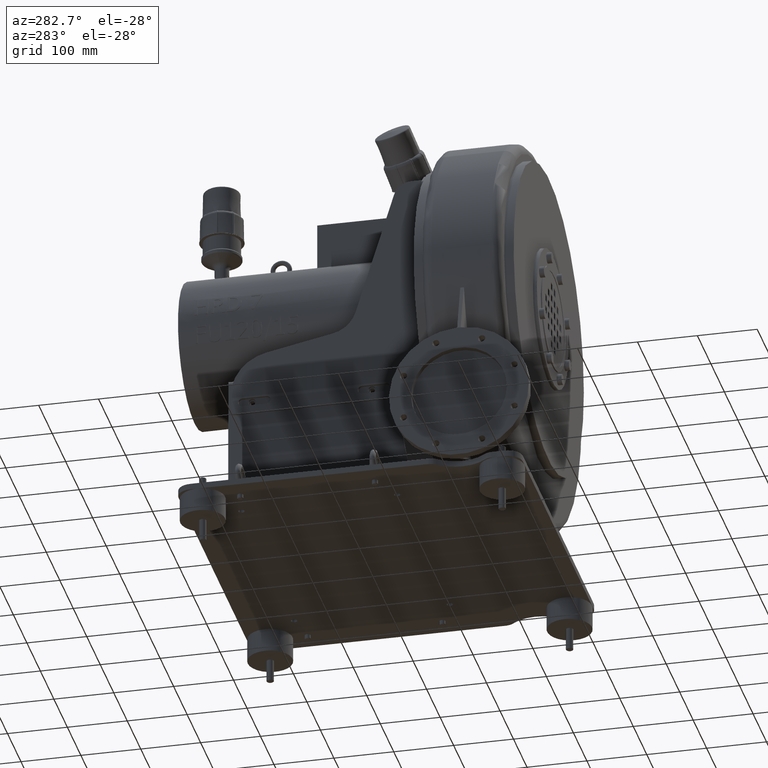
[diagram: clean part render]
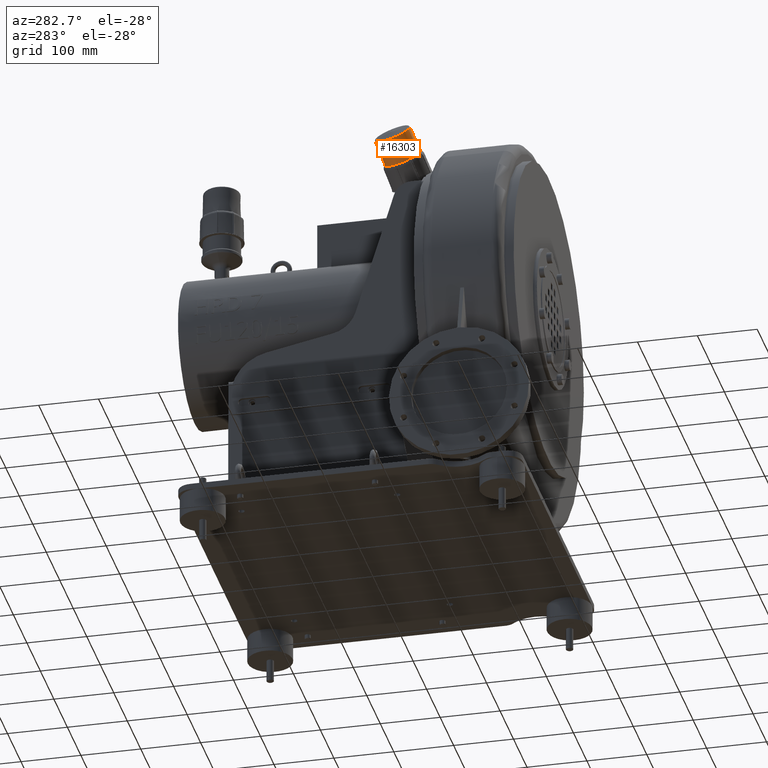
[diagram: same view with one face highlighted and labeled with its STEP entity id]
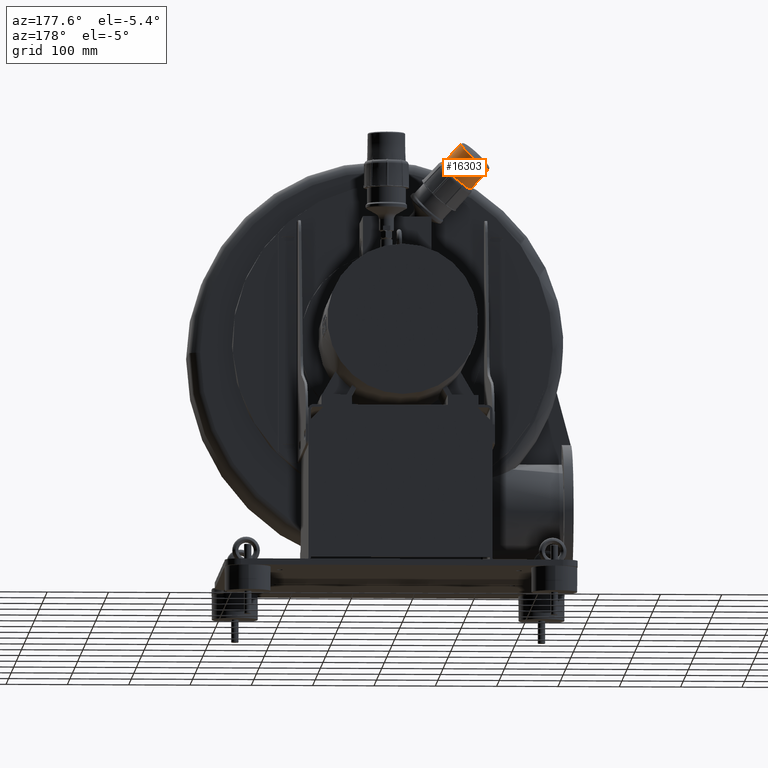
[diagram: same view with one face highlighted and labeled with its STEP entity id]
A machine part, auxiliary view. The second image highlights one B-rep face of the part: STEP entity #16303.
A second angle (auxiliary view) of the same face is appended — the face is thin or edge-on in the first view.
In plain terms, the highlighted conical surface has half-angle 1 deg.
Its self-contained STEP definition (entity closure, byte-faithful):
#8280=CARTESIAN_POINT('',(-125.63222589271791,-69.208766513814041,655.3577129855363));
#8281=VERTEX_POINT('',#8280);
#8291=CARTESIAN_POINT('',(-125.6505280962525,-69.080085635130587,655.21795734609225));
#8292=VERTEX_POINT('',#8291);
#8293=CARTESIAN_POINT('',(-125.63222589271791,-69.208766513814041,655.3577129855363));
#8294=CARTESIAN_POINT('',(-125.63260008677784,-69.1898502410655,655.33326689924809));
#8295=CARTESIAN_POINT('',(-125.63317027289006,-69.170946254988067,655.30924534175165));
#8296=CARTESIAN_POINT('',(-125.63428945843984,-69.153578199285832,655.2881990153885));
#8297=CARTESIAN_POINT('',(-125.634849051225,-69.144894171275894,655.27767585201445));
#8298=CARTESIAN_POINT('',(-125.63554589388167,-69.136594125837433,655.26789649641171));
#8299=CARTESIAN_POINT('',(-125.63642584849632,-69.128870009769315,655.25917866440807));
#8300=CARTESIAN_POINT('',(-125.63730580302573,-69.121145894449143,655.25046083324867));
#8301=CARTESIAN_POINT('',(-125.63836887281326,-69.113997704584321,655.24280452583992));
#8302=CARTESIAN_POINT('',(-125.63966091697881,-69.107617388733615,655.23652745558832));
#8303=CARTESIAN_POINT('',(-125.64030693922564,-69.10442722999818,655.23338891966557));
#8304=CARTESIAN_POINT('',(-125.64101020514235,-69.1014290398453,655.23059519325682));
#8305=CARTESIAN_POINT('',(-125.64177645260152,-69.098646812304338,655.22818598610093));
#8306=CARTESIAN_POINT('',(-125.64292582359572,-69.09447347169943,655.22457217597878));
#8307=CARTESIAN_POINT('',(-125.64421690314288,-69.090786050863187,655.22182353939002));
#8308=CARTESIAN_POINT('',(-125.64566905491122,-69.08766553008148,655.22007409461139));
#8309=CARTESIAN_POINT('',(-125.64639513079543,-69.086105269690634,655.21919937222196));
#8310=CARTESIAN_POINT('',(-125.64716147471962,-69.084686734090155,655.21857444746911));
#8311=CARTESIAN_POINT('',(-125.6479705076994,-69.083420044486431,655.21821607179675));
#8312=CARTESIAN_POINT('',(-125.64877954067917,-69.082153354882706,655.21785769612416));
#8313=CARTESIAN_POINT('',(-125.6496312628546,-69.081038511438507,655.2177658699685));
#8314=CARTESIAN_POINT('',(-125.6505280962525,-69.080085635130587,655.21795734609225));
#8315=B_SPLINE_CURVE_WITH_KNOTS('',3,(#8293,#8294,#8295,#8296,#8297,#8298,#8299,#8300,#8301,#8302,#8303,#8304,#8305,#8306,#8307,#8308,#8309,#8310,#8311,#8312,#8313,#8314),.UNSPECIFIED.,.F.,.U.,(4,3,3,3,3,3,3,4),(0.5,0.666666665650536,0.75,0.833333326279687,0.875,0.9375,0.96875,1.0),.UNSPECIFIED.);
#8316=EDGE_CURVE('',#8281,#8292,#8315,.T.);
#8377=CARTESIAN_POINT('',(-125.6252281458388,-69.3387397290481,655.51993095740158));
#8378=VERTEX_POINT('',#8377);
#8386=CARTESIAN_POINT('',(-125.6252281458388,-69.3387397290481,655.51993095740158));
#8387=CARTESIAN_POINT('',(-125.62737858795529,-69.33326547097235,655.51603789628177));
#8388=CARTESIAN_POINT('',(-125.62875269060066,-69.323308670454381,655.50486182241582));
#8389=CARTESIAN_POINT('',(-125.62966781741775,-69.31036160030618,655.48897621273443));
#8390=CARTESIAN_POINT('',(-125.63012538060718,-69.303888068332128,655.48103341169735));
#8391=CARTESIAN_POINT('',(-125.63046819993936,-69.296666969469257,655.47191322755316));
#8392=CARTESIAN_POINT('',(-125.6307362777614,-69.288885135949556,655.46193713357013));
#8393=CARTESIAN_POINT('',(-125.63100435572392,-69.281103298351724,655.45196103435899));
#8394=CARTESIAN_POINT('',(-125.63119769113534,-69.272760726927871,655.44112902475956));
#8395=CARTESIAN_POINT('',(-125.63135628550225,-69.264044255871852,655.42976257931718));
#8396=CARTESIAN_POINT('',(-125.63167347413855,-69.246611319115331,655.4070296954161));
#8397=CARTESIAN_POINT('',(-125.63185169869405,-69.22768278474085,655.38215906947016));
#8398=CARTESIAN_POINT('',(-125.63222589271791,-69.208766513814041,655.3577129855363));
#8399=B_SPLINE_CURVE_WITH_KNOTS('',3,(#8386,#8387,#8388,#8389,#8390,#8391,#8392,#8393,#8394,#8395,#8396,#8397,#8398),.UNSPECIFIED.,.F.,.U.,(4,3,3,3,4),(0.0,0.166666693270992,0.25,0.333333350400445,0.5),.UNSPECIFIED.);
#8400=EDGE_CURVE('',#8378,#8281,#8399,.T.);
#8851=CARTESIAN_POINT('',(-126.68033109148809,-65.86096481588595,653.2278006478931));
#8852=VERTEX_POINT('',#8851);
#8866=CARTESIAN_POINT('',(-126.7714017242229,-65.677693245987882,653.19072846079609));
#8867=VERTEX_POINT('',#8866);
#8868=CARTESIAN_POINT('',(-126.68033109148807,-65.86096481588595,653.2278006478931));
#8869=CARTESIAN_POINT('',(-126.69436755947405,-65.833851319188909,653.22296203135591));
#8870=CARTESIAN_POINT('',(-126.70869208231109,-65.806455951724004,653.21836082504979));
#8871=CARTESIAN_POINT('',(-126.72170593687049,-65.781307581663071,653.21400296137176));
#8872=CARTESIAN_POINT('',(-126.72821286614908,-65.768733392769903,653.21182402886325));
#8873=CARTESIAN_POINT('',(-126.73439212815435,-65.756720953573691,653.20970593204538));
#8874=CARTESIAN_POINT('',(-126.74004587602106,-65.745587611102508,653.20764796262461));
#8875=CARTESIAN_POINT('',(-126.74569962092502,-65.734454274465534,653.2055899942826));
#8876=CARTESIAN_POINT('',(-126.75082785239513,-65.724200034796766,653.20359215457074));
#8877=CARTESIAN_POINT('',(-126.75523272399126,-65.715142237043523,653.20165373390159));
#8878=CARTESIAN_POINT('',(-126.76404247140209,-65.697026632862205,653.19777689070645));
#8879=CARTESIAN_POINT('',(-126.76995877720736,-65.683696799730598,653.19413772377015));
#8880=CARTESIAN_POINT('',(-126.77140172422291,-65.677693245987882,653.19072846079609));
#8881=B_SPLINE_CURVE_WITH_KNOTS('',3,(#8868,#8869,#8870,#8871,#8872,#8873,#8874,#8875,#8876,#8877,#8878,#8879,#8880),.UNSPECIFIED.,.F.,.U.,(4,3,3,3,4),(0.5,0.666666649600464,0.75,0.833333306730118,1.0),.UNSPECIFIED.);
#8882=EDGE_CURVE('',#8852,#8867,#8881,.T.);
#8947=CARTESIAN_POINT('',(-126.60558315562584,-66.029499727211544,653.2771373249011));
#8948=VERTEX_POINT('',#8947);
#8956=CARTESIAN_POINT('',(-126.60558315562584,-66.029499727211544,653.2771373249011));
#8957=CARTESIAN_POINT('',(-126.60514957532686,-66.028972905190543,653.27600444662426));
#8958=CARTESIAN_POINT('',(-126.60489780520827,-66.028171413788897,653.27487707714056));
#8959=CARTESIAN_POINT('',(-126.60481708132804,-66.027111777330163,653.27375541575316));
#8960=CARTESIAN_POINT('',(-126.60473635744782,-66.026052140871457,653.27263375436598));
#8961=CARTESIAN_POINT('',(-126.60482667950062,-66.024734359720824,653.27151780097427));
#8962=CARTESIAN_POINT('',(-126.60507728467771,-66.023174957582427,653.27040775595208));
#8963=CARTESIAN_POINT('',(-126.60557849503192,-66.020056153305632,653.26818766590782));
#8964=CARTESIAN_POINT('',(-126.60672083864362,-66.015970863737806,653.26599120918445));
#8965=CARTESIAN_POINT('',(-126.6084182107038,-66.011051289583691,653.26381999585601));
#8966=CARTESIAN_POINT('',(-126.60954979226881,-66.007771572925719,653.26237252005865));
#8967=CARTESIAN_POINT('',(-126.61092805177734,-66.004121065637719,653.26093626393367));
#8968=CARTESIAN_POINT('',(-126.61252747615742,-66.000138938576839,653.25951170401481));
#8969=CARTESIAN_POINT('',(-126.61572632410531,-65.992174686477455,653.25666258490048));
#8970=CARTESIAN_POINT('',(-126.61980983090722,-65.982883956026853,653.25386025038324));
#8971=CARTESIAN_POINT('',(-126.62457392224925,-65.972580161196547,653.25110850487238));
#8972=CARTESIAN_POINT('',(-126.62933801405266,-65.962276365368396,653.24835675909503));
#8973=CARTESIAN_POINT('',(-126.63478268911749,-65.950959502618659,653.2456555980641));
#8974=CARTESIAN_POINT('',(-126.64070387064172,-65.938942987150526,653.24300882279545));
#8975=CARTESIAN_POINT('',(-126.65254623347352,-65.914909956653943,653.2377152723551));
#8976=CARTESIAN_POINT('',(-126.66629462215036,-65.888078315194036,653.23263926489631));
#8977=CARTESIAN_POINT('',(-126.68033109148806,-65.860964815885964,653.2278006478931));
#8978=B_SPLINE_CURVE_WITH_KNOTS('',3,(#8956,#8957,#8958,#8959,#8960,#8961,#8962,#8963,#8964,#8965,#8966,#8967,#8968,#8969,#8970,#8971,#8972,#8973,#8974,#8975,#8976,#8977),.UNSPECIFIED.,.F.,.U.,(4,3,3,3,3,3,3,4),(0.0,0.03125,0.0625,0.125,0.166666673720378,0.25,0.33333333434974,0.5),.UNSPECIFIED.);
#8979=EDGE_CURVE('',#8948,#8852,#8978,.T.);
#12268=CARTESIAN_POINT('',(-115.2804493860623,-80.436637787302899,669.03654790612472));
#12269=VERTEX_POINT('',#12268);
#12323=CARTESIAN_POINT('',(-112.92080461175931,-81.151910341637915,671.49852630976397));
#12324=VERTEX_POINT('',#12323);
#12332=CARTESIAN_POINT('',(-112.92080461175931,-81.151910341637915,671.49852630976397));
#12333=CARTESIAN_POINT('',(-113.62553526426275,-80.937665467572671,671.50244067701124));
#12334=CARTESIAN_POINT('',(-114.33326165359837,-80.732898245315766,671.15529055745196));
#12335=CARTESIAN_POINT('',(-114.77298106189201,-80.597722044083397,670.58006429643842));
#12336=CARTESIAN_POINT('',(-115.10277061811223,-80.496339893159103,670.14864460067827));
#12337=CARTESIAN_POINT('',(-115.28233689130019,-80.435599258791868,669.5889845013977));
#12338=CARTESIAN_POINT('',(-115.2804493860623,-80.436637787302899,669.03654790612472));
#12339=B_SPLINE_CURVE_WITH_KNOTS('',3,(#12332,#12333,#12334,#12335,#12336,#12337,#12338),.UNSPECIFIED.,.F.,.U.,(4,3,4),(-0.388543808205024,-0.166518774947492,-4.342083E-012),.UNSPECIFIED.);
#12340=EDGE_CURVE('',#12324,#12269,#12339,.T.);
#12747=CARTESIAN_POINT('',(-97.395603909703567,-77.548953255056659,684.85515894655737));
#12748=VERTEX_POINT('',#12747);
#12802=CARTESIAN_POINT('',(-94.948423708196287,-75.718153472255082,686.52858571953266));
#12803=VERTEX_POINT('',#12802);
#12811=CARTESIAN_POINT('',(-94.948423708196316,-75.718153472255082,686.52858571953266));
#12812=CARTESIAN_POINT('',(-95.654951792198673,-75.880149772988062,686.65949311419354));
#12813=CARTESIAN_POINT('',(-96.3705297506432,-76.232897037874395,686.49565405456201));
#12814=CARTESIAN_POINT('',(-96.831480448525582,-76.633240446406859,686.08363426640551));
#12815=CARTESIAN_POINT('',(-97.177193471937386,-76.933498002806203,685.77461942528817));
#12816=CARTESIAN_POINT('',(-97.379302034889179,-77.261825457689952,685.32683967530375));
#12817=CARTESIAN_POINT('',(-97.395603909703595,-77.548953255056659,684.85515894655714));
#12818=B_SPLINE_CURVE_WITH_KNOTS('',3,(#12811,#12812,#12813,#12814,#12815,#12816,#12817),.UNSPECIFIED.,.F.,.U.,(4,3,4),(-0.388543808205024,-0.166518774947492,-4.341931E-012),.UNSPECIFIED.);
#12819=EDGE_CURVE('',#12803,#12748,#12818,.T.);
#13226=CARTESIAN_POINT('',(-83.487808851388792,-59.132313169310123,691.62534945255379));
#13227=VERTEX_POINT('',#13226);
#13281=CARTESIAN_POINT('',(-82.386618195149282,-55.827898732147418,691.52995388689442));
#13282=VERTEX_POINT('',#13281);
#13290=CARTESIAN_POINT('',(-82.386618195149282,-55.827898732147396,691.52995388689442));
#13291=CARTESIAN_POINT('',(-82.760089234563878,-56.104851605023313,691.82829483604053));
#13292=CARTESIAN_POINT('',(-83.090382586534872,-56.547017260506621,692.03929118719077));
#13293=CARTESIAN_POINT('',(-83.302154234801606,-57.053553918757984,692.10037976627427));
#13294=CARTESIAN_POINT('',(-83.584516432490574,-57.728936129759788,692.18183120505262));
#13295=CARTESIAN_POINT('',(-83.658063507595131,-58.518212764649348,691.99474832362603));
#13296=CARTESIAN_POINT('',(-83.487808851388792,-59.132313169310123,691.62534945255356));
#13297=B_SPLINE_CURVE_WITH_KNOTS('',3,(#13290,#13291,#13292,#13293,#13294,#13295,#13296),.UNSPECIFIED.,.F.,.U.,(4,3,4),(-0.388543808205024,-0.222025033261875,-4.342560E-012),.UNSPECIFIED.);
#13298=EDGE_CURVE('',#13282,#13227,#13297,.T.);
#13705=CARTESIAN_POINT('',(-81.704061933573229,-35.974935518949607,685.38123364555088));
#13706=VERTEX_POINT('',#13705);
#13760=CARTESIAN_POINT('',(-82.593923374268059,-33.132587589014193,683.57289716983007));
#13761=VERTEX_POINT('',#13760);
#13769=CARTESIAN_POINT('',(-82.593923374268087,-33.132587589014214,683.57289716983007));
#13770=CARTESIAN_POINT('',(-82.795129475520042,-33.418746891112178,684.22111815032508));
#13771=CARTESIAN_POINT('',(-82.76759415977422,-33.967260678735904,684.82253324502324));
#13772=CARTESIAN_POINT('',(-82.529748380377029,-34.586775782999737,685.14212848478462));
#13773=CARTESIAN_POINT('',(-82.351364045829143,-35.051412111197621,685.38182491460566));
#13774=CARTESIAN_POINT('',(-82.053578971133035,-35.555157668782577,685.46378805172469));
#13775=CARTESIAN_POINT('',(-81.704061933573243,-35.974935518949621,685.38123364555088));
#13776=B_SPLINE_CURVE_WITH_KNOTS('',3,(#13769,#13770,#13771,#13772,#13773,#13774,#13775),.UNSPECIFIED.,.F.,.U.,(4,3,4),(-0.388543808205023,-0.166518774947491,-4.341214E-012),.UNSPECIFIED.);
#13777=EDGE_CURVE('',#13761,#13706,#13776,.T.);
#14184=CARTESIAN_POINT('',(-93.089257908872071,-21.642098062560706,669.78052988026297));
#14185=VERTEX_POINT('',#14184);
#14239=CARTESIAN_POINT('',(-95.448902683175049,-20.92682550822569,667.31855147662372));
#14240=VERTEX_POINT('',#14239);
#14248=CARTESIAN_POINT('',(-95.448902683175078,-20.92682550822569,667.31855147662372));
#14249=CARTESIAN_POINT('',(-95.439000134307605,-20.88817363463577,668.05405773295752));
#14250=CARTESIAN_POINT('',(-95.095808384552925,-20.960261098726257,668.78913751325626));
#14251=CARTESIAN_POINT('',(-94.54727990591519,-21.135040562782066,669.24857158016596));
#14252=CARTESIAN_POINT('',(-94.135883546936867,-21.266125160823925,669.59314713034814));
#14253=CARTESIAN_POINT('',(-93.608491481362094,-21.453464030330043,669.78265875267675));
#14254=CARTESIAN_POINT('',(-93.089257908872071,-21.642098062560713,669.78052988026297));
#14255=B_SPLINE_CURVE_WITH_KNOTS('',3,(#14248,#14249,#14250,#14251,#14252,#14253,#14254),.UNSPECIFIED.,.F.,.U.,(4,3,4),(-0.388543808205023,-0.166518774947491,-4.341795E-012),.UNSPECIFIED.);
#14256=EDGE_CURVE('',#14240,#14185,#14255,.T.);
#14663=CARTESIAN_POINT('',(-110.97410338523079,-24.529782594806939,653.96191883983056));
#14664=VERTEX_POINT('',#14663);
#14718=CARTESIAN_POINT('',(-113.42128358673807,-26.360582377608495,652.28849206685527));
#14719=VERTEX_POINT('',#14718);
#14727=CARTESIAN_POINT('',(-113.42128358673807,-26.360582377608495,652.28849206685504));
#14728=CARTESIAN_POINT('',(-113.40958360637174,-25.945689329220372,652.89700529577522));
#14729=CARTESIAN_POINT('',(-113.05854774554976,-25.460259591662439,653.44878195282843));
#14730=CARTESIAN_POINT('',(-112.48878691108025,-25.09951983403413,653.7450084122089));
#14731=CARTESIAN_POINT('',(-112.06146628522814,-24.828965015812898,653.96717825674432));
#14732=CARTESIAN_POINT('',(-111.51152633777315,-24.627237831432002,654.0448035787706));
#14733=CARTESIAN_POINT('',(-110.97410338523083,-24.529782594806942,653.96191883983056));
#14734=B_SPLINE_CURVE_WITH_KNOTS('',3,(#14727,#14728,#14729,#14730,#14731,#14732,#14733),.UNSPECIFIED.,.F.,.U.,(4,3,4),(-0.388543808205022,-0.166518774947491,-4.342494E-012),.UNSPECIFIED.);
#14735=EDGE_CURVE('',#14719,#14664,#14734,.T.);
#15142=CARTESIAN_POINT('',(-124.88189844354558,-42.946422680553468,647.19172833383413));
#15143=VERTEX_POINT('',#15142);
#15197=CARTESIAN_POINT('',(-125.9830890997851,-46.250837117716188,647.28712389949339));
#15198=VERTEX_POINT('',#15197);
#15206=CARTESIAN_POINT('',(-125.98308909978512,-46.250837117716173,647.28712389949328));
#15207=CARTESIAN_POINT('',(-126.17995581753499,-45.62866987289312,647.62875659087945));
#15208=CARTESIAN_POINT('',(-126.13347440763479,-44.831223446326717,647.78762174839721));
#15209=CARTESIAN_POINT('',(-125.84437040535256,-44.157879921213819,647.71320140291095));
#15210=CARTESIAN_POINT('',(-125.62754240364089,-43.652872277379146,647.65738614379632));
#15211=CARTESIAN_POINT('',(-125.27532852911875,-43.217325423307329,647.46924464821655));
#15212=CARTESIAN_POINT('',(-124.88189844354558,-42.946422680553454,647.19172833383413));
#15213=B_SPLINE_CURVE_WITH_KNOTS('',3,(#15206,#15207,#15208,#15209,#15210,#15211,#15212),.UNSPECIFIED.,.F.,.U.,(4,3,4),(-0.388543808205023,-0.166518774947491,-4.341153E-012),.UNSPECIFIED.);
#15214=EDGE_CURVE('',#15198,#15143,#15213,.T.);
#15476=CARTESIAN_POINT('',(-104.18485364746718,-51.039367924931796,669.40853889319385));
#15477=DIRECTION('',(0.664463024388675,-0.241844762647995,-0.70710678118654));
#15478=DIRECTION('',(0.70232954703645,0.525431180498066,0.480265845048328));
#15479=AXIS2_PLACEMENT_3D('',#15476,#15477,#15478);
#15480=CIRCLE('',#15479,31.423718708164738);
#15481=EDGE_CURVE('',#8867,#15198,#15480,.T.);
#15502=CARTESIAN_POINT('',(-104.18485364746718,-51.039367924931796,669.40853889319385));
#15503=DIRECTION('',(0.664463024388675,-0.241844762647995,-0.70710678118654));
#15504=DIRECTION('',(0.70232954703645,0.525431180498066,0.480265845048328));
#15505=AXIS2_PLACEMENT_3D('',#15502,#15503,#15504);
#15506=CIRCLE('',#15505,31.423718708164738);
#15507=EDGE_CURVE('',#15143,#14719,#15506,.T.);
#15528=CARTESIAN_POINT('',(-104.18485364746718,-51.039367924931796,669.40853889319385));
#15529=DIRECTION('',(0.664463024388675,-0.241844762647995,-0.70710678118654));
#15530=DIRECTION('',(0.70232954703645,0.525431180498066,0.480265845048328));
#15531=AXIS2_PLACEMENT_3D('',#15528,#15529,#15530);
#15532=CIRCLE('',#15531,31.423718708164738);
#15533=EDGE_CURVE('',#14664,#14240,#15532,.T.);
#15554=CARTESIAN_POINT('',(-104.18485364746718,-51.039367924931796,669.40853889319385));
#15555=DIRECTION('',(0.664463024388675,-0.241844762647995,-0.70710678118654));
#15556=DIRECTION('',(0.70232954703645,0.525431180498066,0.480265845048328));
#15557=AXIS2_PLACEMENT_3D('',#15554,#15555,#15556);
#15558=CIRCLE('',#15557,31.423718708164738);
#15559=EDGE_CURVE('',#14185,#13761,#15558,.T.);
#15580=CARTESIAN_POINT('',(-104.18485364746718,-51.039367924931796,669.40853889319385));
#15581=DIRECTION('',(0.664463024388675,-0.241844762647995,-0.70710678118654));
#15582=DIRECTION('',(0.70232954703645,0.525431180498066,0.480265845048328));
#15583=AXIS2_PLACEMENT_3D('',#15580,#15581,#15582);
#15584=CIRCLE('',#15583,31.423718708164738);
#15585=EDGE_CURVE('',#13706,#13282,#15584,.T.);
#15606=CARTESIAN_POINT('',(-104.18485364746718,-51.039367924931796,669.40853889319385));
#15607=DIRECTION('',(0.664463024388675,-0.241844762647995,-0.70710678118654));
#15608=DIRECTION('',(0.70232954703645,0.525431180498066,0.480265845048328));
#15609=AXIS2_PLACEMENT_3D('',#15606,#15607,#15608);
#15610=CIRCLE('',#15609,31.423718708164738);
#15611=EDGE_CURVE('',#13227,#12803,#15610,.T.);
#15623=CARTESIAN_POINT('',(-104.18485364746718,-51.039367924931796,669.40853889319385));
#15624=DIRECTION('',(0.664463024388675,-0.241844762647995,-0.70710678118654));
#15625=DIRECTION('',(0.70232954703645,0.525431180498066,0.480265845048328));
#15626=AXIS2_PLACEMENT_3D('',#15623,#15624,#15625);
#15627=CIRCLE('',#15626,31.423718708164738);
#15628=EDGE_CURVE('',#12269,#8378,#15627,.T.);
#15658=CARTESIAN_POINT('',(-104.18485364746718,-51.039367924931796,669.40853889319385));
#15659=DIRECTION('',(0.664463024388675,-0.241844762647995,-0.70710678118654));
#15660=DIRECTION('',(0.70232954703645,0.525431180498066,0.480265845048328));
#15661=AXIS2_PLACEMENT_3D('',#15658,#15659,#15660);
#15662=CIRCLE('',#15661,31.423718708164738);
#15663=EDGE_CURVE('',#12748,#12324,#15662,.T.);
#15958=CARTESIAN_POINT('',(-126.64550936385524,-66.078069613260709,653.38173699719619));
#15959=VERTEX_POINT('',#15958);
#15967=CARTESIAN_POINT('',(-101.81313391044878,-52.356817321531643,668.39942771457299));
#15968=DIRECTION('',(0.552677202211156,-0.816272468376939,-0.168068936826137));
#15969=DIRECTION('',(0.34158141681909,0.405820302884839,-0.847721662723279));
#15970=AXIS2_PLACEMENT_3D('',#15967,#15968,#15969);
#15971=ELLIPSE('',#15970,46.23078014236615,32.086567994964227);
#15972=EDGE_CURVE('',#15959,#8948,#15971,.T.);
#16005=CARTESIAN_POINT('',(-125.73321076583652,-68.992085113850067,655.2356692568726));
#16006=VERTEX_POINT('',#16005);
#16014=CARTESIAN_POINT('',(-125.73321076583652,-68.992085113850067,655.2356692568726));
#16015=CARTESIAN_POINT('',(-126.24872507785794,-68.442472090224896,655.34647003596092));
#16016=CARTESIAN_POINT('',(-126.6597849221132,-67.739413420644709,655.13375273202314));
#16017=CARTESIAN_POINT('',(-126.79114257330269,-67.141694099391103,654.68279226168579));
#16018=CARTESIAN_POINT('',(-126.88966081169481,-66.693404608450905,654.34457190893272));
#16019=CARTESIAN_POINT('',(-126.83198880148746,-66.305188406902985,653.87158622241714));
#16020=CARTESIAN_POINT('',(-126.64550936385524,-66.078069613260737,653.38173699719619));
#16021=B_SPLINE_CURVE_WITH_KNOTS('',3,(#16014,#16015,#16016,#16017,#16018,#16019,#16020),.UNSPECIFIED.,.F.,.U.,(4,3,4),(-0.401667470326158,-0.172143201568353,0.0),.UNSPECIFIED.);
#16022=EDGE_CURVE('',#16006,#15959,#16021,.T.);
#16061=CARTESIAN_POINT('',(-102.35054580263308,-50.427129763916611,667.22627068462828));
#16062=DIRECTION('',(0.185029503502549,0.358048192988903,-0.915186087269131));
#16063=DIRECTION('',(-0.690887274955332,0.709676260348712,0.137965136183975));
#16064=AXIS2_PLACEMENT_3D('',#16061,#16062,#16063);
#16065=ELLIPSE('',#16064,46.283787975262001,32.160108558777175);
#16066=EDGE_CURVE('',#8292,#16006,#16065,.T.);
#16263=CARTESIAN_POINT('',(-118.50026124339641,-45.828985668624838,684.64267746071437));
#16264=DIRECTION('',(0.664463024388675,-0.241844762647995,-0.70710678118654));
#16265=DIRECTION('',(-0.316036691667051,-0.948351859598968,0.027378091886112));
#16266=AXIS2_PLACEMENT_3D('',#16263,#16264,#16265);
#16267=CONICAL_SURFACE('',#16266,31.04766110993986,1.000000000000014);
#16268=ORIENTED_EDGE('',*,*,#12340,.F.);
#16269=ORIENTED_EDGE('',*,*,#15663,.F.);
#16270=ORIENTED_EDGE('',*,*,#12819,.F.);
#16271=ORIENTED_EDGE('',*,*,#15611,.F.);
#16272=ORIENTED_EDGE('',*,*,#13298,.F.);
#16273=ORIENTED_EDGE('',*,*,#15585,.F.);
#16274=ORIENTED_EDGE('',*,*,#13777,.F.);
#16275=ORIENTED_EDGE('',*,*,#15559,.F.);
#16276=ORIENTED_EDGE('',*,*,#14256,.F.);
#16277=ORIENTED_EDGE('',*,*,#15533,.F.);
#16278=ORIENTED_EDGE('',*,*,#14735,.F.);
#16279=ORIENTED_EDGE('',*,*,#15507,.F.);
#16280=ORIENTED_EDGE('',*,*,#15214,.F.);
#16281=ORIENTED_EDGE('',*,*,#15481,.F.);
#16282=ORIENTED_EDGE('',*,*,#8882,.F.);
#16283=ORIENTED_EDGE('',*,*,#8979,.F.);
#16284=ORIENTED_EDGE('',*,*,#15972,.F.);
#16285=ORIENTED_EDGE('',*,*,#16022,.F.);
#16286=ORIENTED_EDGE('',*,*,#16066,.F.);
#16287=ORIENTED_EDGE('',*,*,#8316,.F.);
#16288=ORIENTED_EDGE('',*,*,#8400,.F.);
#16289=ORIENTED_EDGE('',*,*,#15628,.F.);
#16290=EDGE_LOOP('',(#16268,#16269,#16270,#16271,#16272,#16273,#16274,#16275,#16276,#16277,#16278,#16279,#16280,#16281,#16282,#16283,#16284,#16285,#16286,#16287,#16288,#16289));
#16291=FACE_OUTER_BOUND('',#16290,.T.);
#16292=CARTESIAN_POINT('',(-142.7338475184647,-69.617912489240041,700.95764135533773));
#16293=VERTEX_POINT('',#16292);
#16294=CARTESIAN_POINT('',(-133.04237757595345,-40.536088180337266,700.11807442658039));
#16295=DIRECTION('',(0.664463024388675,-0.241844762647995,-0.70710678118654));
#16296=DIRECTION('',(-0.316036691667051,-0.948351859598968,0.027378091886112));
#16297=AXIS2_PLACEMENT_3D('',#16294,#16295,#16296);
#16298=CIRCLE('',#16297,30.665648002420419);
#16299=EDGE_CURVE('',#16293,#16293,#16298,.T.);
#16300=ORIENTED_EDGE('',*,*,#16299,.T.);
#16301=EDGE_LOOP('',(#16300));
#16302=FACE_BOUND('',#16301,.T.);
#16303=ADVANCED_FACE('',(#16291,#16302),#16267,.T.);